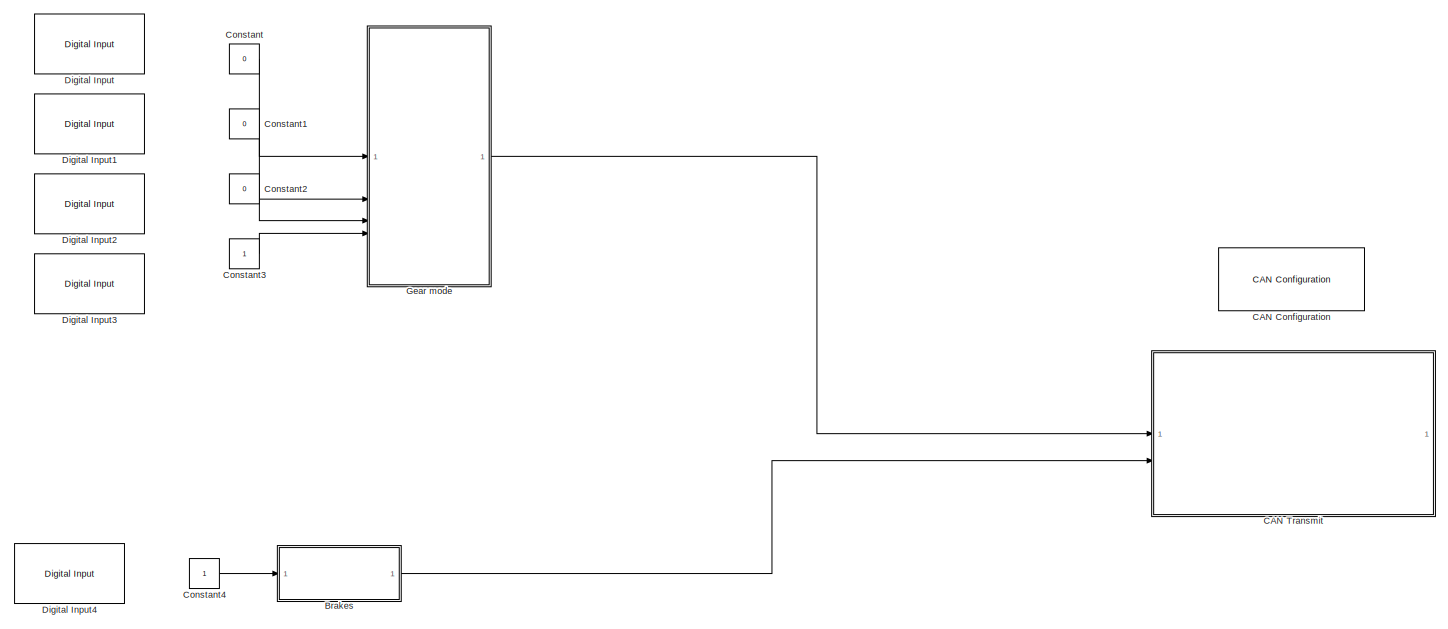
[diagram: root canvas - part 1/3, top left region]
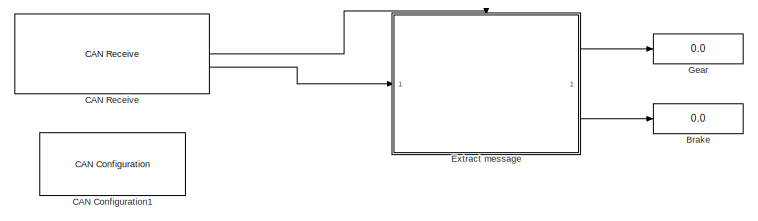
[diagram: root canvas - part 2/3, top right region]
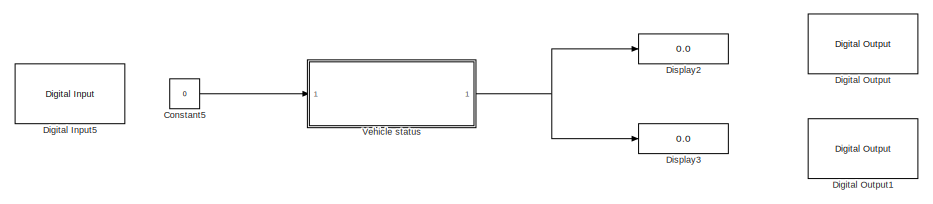
[diagram: root canvas - part 3/3, bottom center region]
MODEL slx_b6f34d10c52f
KIND model
CONFIG AbsTol = auto
CONFIG EnableMultiTasking = on
CONFIG FixedStep = auto
CONFIG MaxStep = auto
CONFIG MinStep = auto
CONFIG RelTol = 1e-3
CONFIG SampleTimeConstraint = Unconstrained
CONFIG SolverName = VariableStepAuto
CONFIG StartTime = 0.0
CONFIG StopTime = Inf
BLOCK [Display] Brake
  Decimation = 1
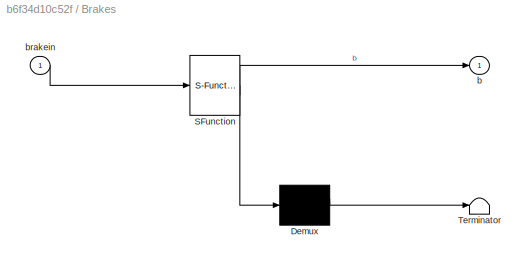
BLOCK [SubSystem] Brakes
  ErrorFcn = Stateflow.Translate.translate
  PermitHierarchicalResolution = ExplicitOnly
  SFBlockType = Chart
  TreatAsAtomicUnit = on
BLOCK [Demux] Brakes/ Demux 
  Outputs = 1
BLOCK [S-Function] Brakes/ SFunction 
  EnableBusSupport = on
  FunctionName = sf_sfun
  PortCounts = [1 2]
  SFcnIsStateOwnerBlock = off
  SFunctionDeploymentMode = off
  Tag = Stateflow S-Function 1
BLOCK [Terminator] Brakes/ Terminator 
BLOCK [Outport] Brakes/b
BLOCK [Inport] Brakes/brakein
BLOCK [Reference] CAN Configuration  REF=canlib/CAN Configuration
  SourceBlock = canlib/CAN Configuration
  SourceType = CAN Configuration
BLOCK [Reference] CAN Configuration1  REF=canlib/CAN Configuration
  SourceBlock = canlib/CAN Configuration
  SourceType = CAN Configuration
BLOCK [Reference] CAN Receive  REF=canlib/CAN Receive
  SourceBlock = canlib/CAN Receive
  SourceType = CAN Receive
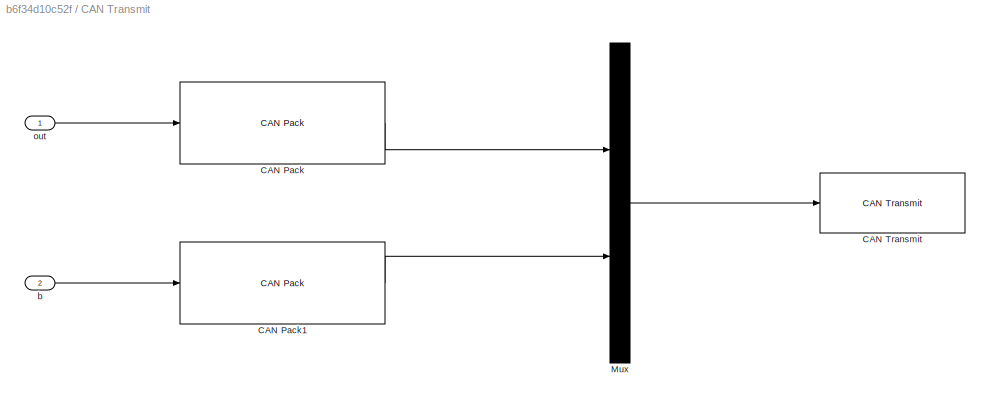
BLOCK [SubSystem] CAN Transmit
BLOCK [Reference] CAN Transmit/CAN Pack  REF=canmsglib/CAN Pack
  LibrarySourceBlock = c2000lib/Target Communication/CAN Pack
  SourceBlock = canmsglib/CAN Pack
  SourceType = CAN Pack
BLOCK [Reference] CAN Transmit/CAN Pack1  REF=canmsglib/CAN Pack
  LibrarySourceBlock = c2000lib/Target Communication/CAN Pack
  SourceBlock = canmsglib/CAN Pack
  SourceType = CAN Pack
BLOCK [Reference] CAN Transmit/CAN Transmit  REF=canlib/CAN Transmit
  SourceBlock = canlib/CAN Transmit
  SourceType = CAN Transmit
BLOCK [Mux] CAN Transmit/Mux
  DisplayOption = bar
  Inputs = 2
BLOCK [Inport] CAN Transmit/b
  Port = 2
BLOCK [Inport] CAN Transmit/out
BLOCK [Constant] Constant
  LockScale = on
  OutDataTypeStr = uint8
  OutMax = 8
  OutMin = 0
  Value = 0
BLOCK [Constant] Constant1
  LockScale = on
  OutDataTypeStr = uint8
  OutMax = 8
  OutMin = 0
  Value = 0
BLOCK [Constant] Constant2
  LockScale = on
  OutDataTypeStr = uint8
  OutMax = 8
  OutMin = 0
  Value = 0
BLOCK [Constant] Constant3
  LockScale = on
  OutDataTypeStr = uint8
  OutMax = 8
  OutMin = 0
BLOCK [Constant] Constant4
  OutDataTypeStr = uint8
  OutMax = 8
  OutMin = 0
BLOCK [Constant] Constant5
  Value = 0
BLOCK [Reference] Digital Input  REF=c2806xlib/Digital Input
  SourceBlock = c2806xlib/Digital Input
  SourceType = C2806x GPIO Digital Input
  UserDataPersistent = on
BLOCK [Reference] Digital Input1  REF=c2806xlib/Digital Input
  SourceBlock = c2806xlib/Digital Input
  SourceType = C2806x GPIO Digital Input
  UserDataPersistent = on
BLOCK [Reference] Digital Input2  REF=c2806xlib/Digital Input
  SourceBlock = c2806xlib/Digital Input
  SourceType = C2806x GPIO Digital Input
  UserDataPersistent = on
BLOCK [Reference] Digital Input3  REF=c2806xlib/Digital Input
  SourceBlock = c2806xlib/Digital Input
  SourceType = C2806x GPIO Digital Input
  UserDataPersistent = on
BLOCK [Reference] Digital Input4  REF=c2806xlib/Digital Input
  SourceBlock = c2806xlib/Digital Input
  SourceType = C2806x GPIO Digital Input
  UserDataPersistent = on
BLOCK [Reference] Digital Input5  REF=c2806xlib/Digital Input
  SourceBlock = c2806xlib/Digital Input
  SourceType = C2806x GPIO Digital Input
  UserDataPersistent = on
BLOCK [Reference] Digital Output  REF=c2806xlib/Digital Output
  SourceBlock = c2806xlib/Digital Output
  SourceType = C2806x GPIO Digital Output
  UserDataPersistent = on
BLOCK [Reference] Digital Output1  REF=c2806xlib/Digital Output
  SourceBlock = c2806xlib/Digital Output
  SourceType = C2806x GPIO Digital Output
  UserDataPersistent = on
BLOCK [Display] Display2
  Decimation = 1
BLOCK [Display] Display3
  Decimation = 1
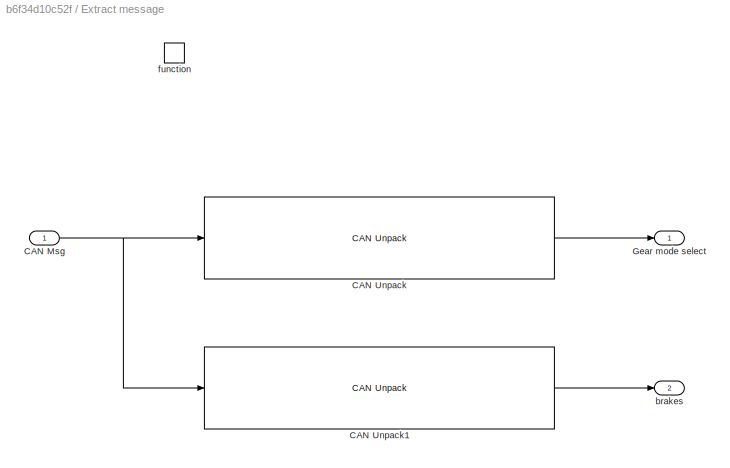
BLOCK [SubSystem] Extract message
  TreatAsAtomicUnit = on
BLOCK [Inport] Extract message/CAN Msg
  LockScale = on
  OutMax = 8
  OutMin = 0
BLOCK [Reference] Extract message/CAN Unpack  REF=canmsglib/CAN Unpack
  SourceBlock = canmsglib/CAN Unpack
  SourceType = CAN Unpack
BLOCK [Reference] Extract message/CAN Unpack1  REF=canmsglib/CAN Unpack
  SourceBlock = canmsglib/CAN Unpack
  SourceType = CAN Unpack
BLOCK [Outport] Extract message/Gear mode select
  LockScale = on
  OutDataTypeStr = uint8
  OutMax = 8
  OutMin = 0
  VectorParamsAs1DForOutWhenUnconnected = off
BLOCK [Outport] Extract message/brakes
  LockScale = on
  OutDataTypeStr = uint8
  OutMax = 8
  OutMin = 0
  Port = 2
  VectorParamsAs1DForOutWhenUnconnected = off
BLOCK [TriggerPort] Extract message/function
  StatesWhenEnabling = held
  TriggerType = function-call
  VariantControl = Variant
BLOCK [Display] Gear
  Decimation = 1
  Format = decimal (Stored Integer)
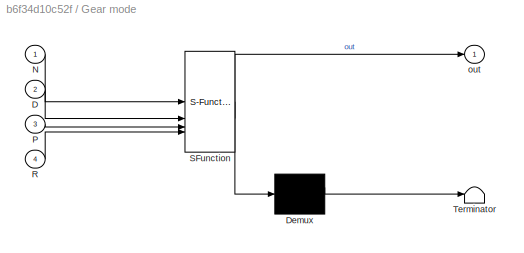
BLOCK [SubSystem] Gear mode
  ErrorFcn = Stateflow.Translate.translate
  PermitHierarchicalResolution = ExplicitOnly
  SFBlockType = Chart
  TreatAsAtomicUnit = on
BLOCK [Demux] Gear mode/ Demux 
  Outputs = 1
BLOCK [S-Function] Gear mode/ SFunction 
  EnableBusSupport = on
  FunctionName = sf_sfun
  PortCounts = [4 2]
  SFcnIsStateOwnerBlock = off
  SFunctionDeploymentMode = off
  Tag = Stateflow S-Function 3
BLOCK [Terminator] Gear mode/ Terminator 
BLOCK [Inport] Gear mode/D
  Port = 2
BLOCK [Inport] Gear mode/N
BLOCK [Inport] Gear mode/P
  Port = 3
BLOCK [Inport] Gear mode/R
  Port = 4
BLOCK [Outport] Gear mode/out
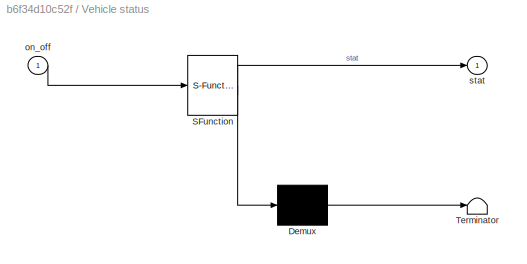
BLOCK [SubSystem] Vehicle status
  ErrorFcn = Stateflow.Translate.translate
  PermitHierarchicalResolution = ExplicitOnly
  SFBlockType = Chart
  TreatAsAtomicUnit = on
BLOCK [Demux] Vehicle status/ Demux 
  Outputs = 1
BLOCK [S-Function] Vehicle status/ SFunction 
  EnableBusSupport = on
  FunctionName = sf_sfun
  PortCounts = [1 2]
  SFcnIsStateOwnerBlock = off
  SFunctionDeploymentMode = off
  Tag = Stateflow S-Function 2
BLOCK [Terminator] Vehicle status/ Terminator 
BLOCK [Inport] Vehicle status/on_off
BLOCK [Outport] Vehicle status/stat
LINE Brakes:1 -> CAN Transmit:2
LINE CAN Receive:1 -> Extract message:trigger
LINE CAN Receive:2 -> Extract message:1
LINE CAN Transmit/CAN Pack1:1 -> CAN Transmit/Mux:2
LINE CAN Transmit/CAN Pack:1 -> CAN Transmit/Mux:1
LINE CAN Transmit/Mux:1 -> CAN Transmit/CAN Transmit:1
LINE CAN Transmit/b:1 -> CAN Transmit/CAN Pack1:1
LINE CAN Transmit/out:1 -> CAN Transmit/CAN Pack:1
LINE Constant1:1 -> Gear mode:2
LINE Constant2:1 -> Gear mode:3
LINE Constant3:1 -> Gear mode:4
LINE Constant4:1 -> Brakes:1
LINE Constant5:1 -> Vehicle status:1
LINE Constant:1 -> Gear mode:1
NET Extract message/CAN Msg:1 -> Extract message/CAN Unpack1:1, Extract message/CAN Unpack:1
LINE Extract message/CAN Unpack1:1 -> Extract message/brakes:1
LINE Extract message/CAN Unpack:1 -> Extract message/Gear mode select:1
LINE Extract message:1 -> Gear:1
LINE Extract message:2 -> Brake:1
LINE Gear mode:1 -> CAN Transmit:1
NET Vehicle status:1 -> Display2:1, Display3:1
note: NET lines group one-source signal fan-out (src -> all destinations, sorted); 1:1 wires keep LINE
CHART Brakes states=2 transitions=3
  STATE_LABEL 'brakeactive\nb=1;'
  STATE_LABEL 'brakeinact\nb=0;'
CHART Vehicle status states=2 transitions=3
  STATE_LABEL 'vehicle_off\nstat=0;'
  STATE_LABEL 'vehicle_on\nstat=1;'
CHART Gear mode states=4 transitions=15
  STATE_LABEL 'Drive\nout=1;'
  STATE_LABEL 'Neutral\nout=0;'
  STATE_LABEL 'Reverse\nout=3;'
  STATE_LABEL 'Park\nout=2;'
CHART  states=0 transitions=0
CHART  states=0 transitions=0
CHART  states=0 transitions=0
